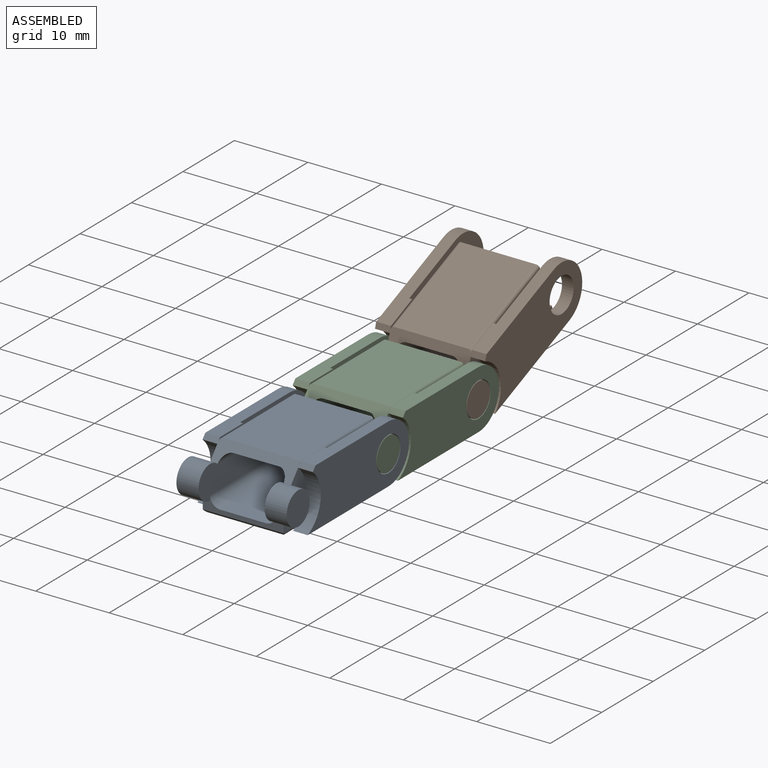
[diagram: assembled view]
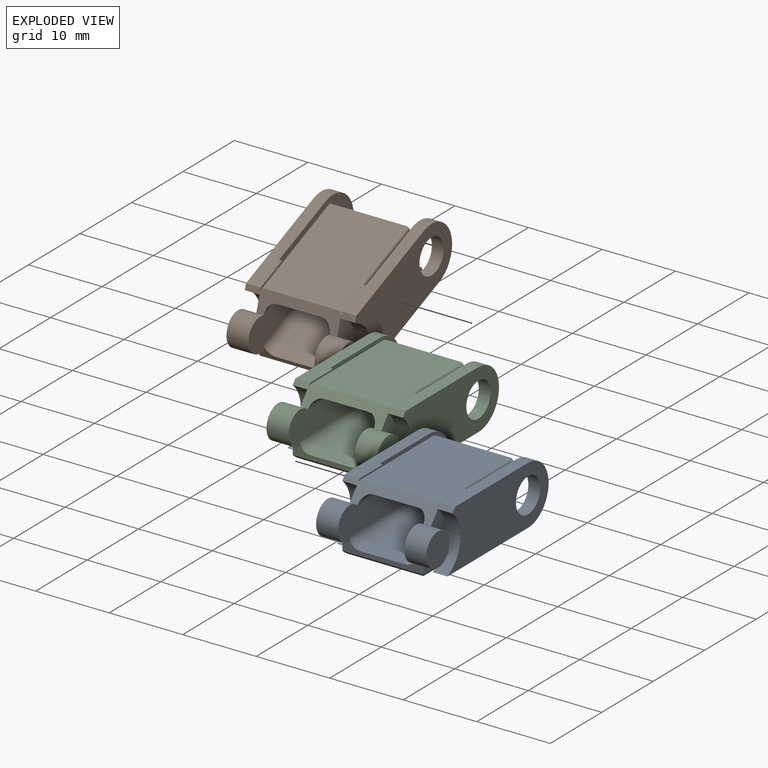
[diagram: exploded view]
GUIDED TOUR — MATED ASSEMBLY (Onshape document 5889c19751c03d0fcc5c28de, AutoMate assembly 5889c19751c03d0fcc5c28de_8cbc935df025601e3b0e09b3_b1a185b5f9ac75ec08f0bbe1_default)

This assembly has 3 components, labeled P0..P2 below (a component is one placed occurrence of a part; the same part can appear more than once), held together by 2 mates. A mate is a constraint between two components; its type names the relative motion it leaves free:
  REVOLUTE — leaves rotation about the listed axis free (a hinge).
Axis/direction vectors are unit vectors and 'through' points are millimeter coordinates, both in the assembly's world frame.

MATES
  1. REVOLUTE "Drehen 2": P0 <-> P2, axis (1.000, 0.000, 0.000) through (7.51, -6.49, -1.43) mm
  2. REVOLUTE "Drehen 1": P1 <-> P2, axis (-1.000, 0.000, 0.000) through (7.51, 11.01, -1.43) mm

ASSEMBLY ORDER
  1. P2 — the base component [order heuristic]
  2. P0 [order heuristic]
  3. P1 [order heuristic]
Order-tag legend:
  [order heuristic] — this assembly is geometrically interlocked (no collision-free removal order exists), so components are listed in mate-graph order; insertion feasibility is not verified.

Of the 3 components, 3 carry the full construction recipe — the FeatureScript program that regenerates the part's solid from scratch; the rest are supplied as boundary geometry only.
Each toured component is shown spotlighted twice — in the assembled view, then in the exploded view, where a leader line traces a displaced component back to its assembled socket (saturated green if recipe-attached, orange if geometry-only; every other component desaturated gray) — followed by its recipe or geometry summary and the mates that hold it.
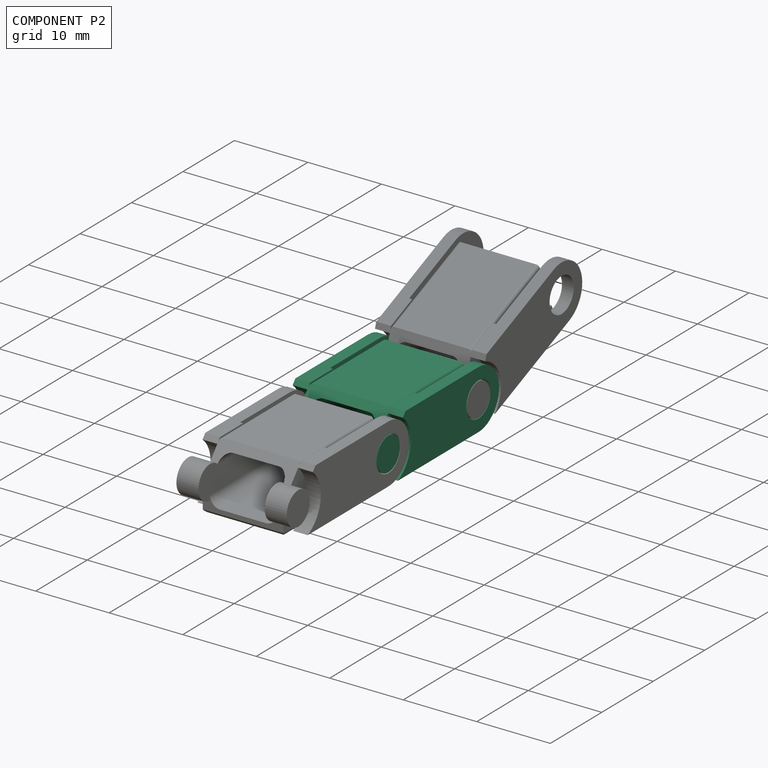
[diagram: component P2 — assembled]
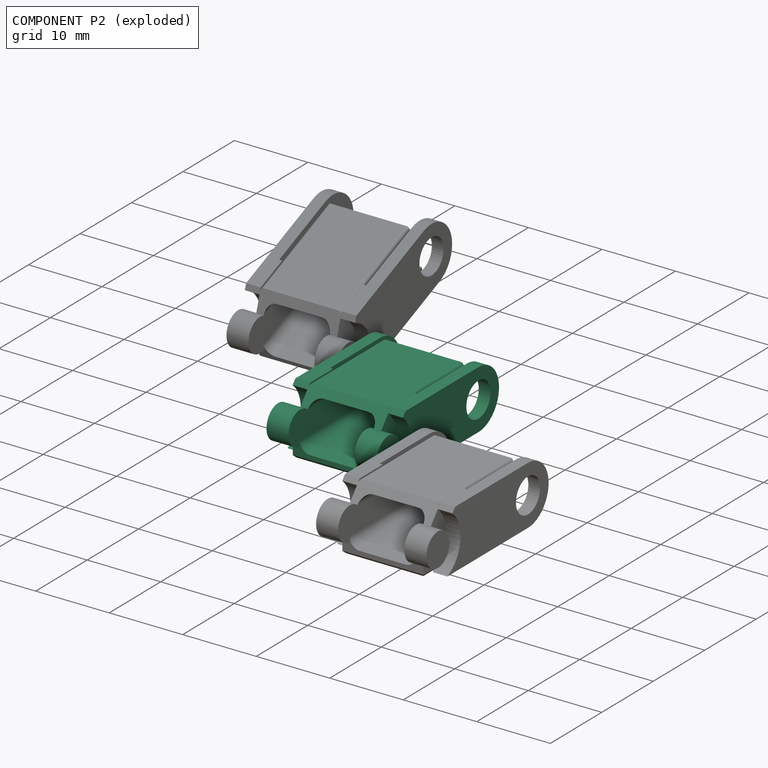
[diagram: component P2 — exploded]
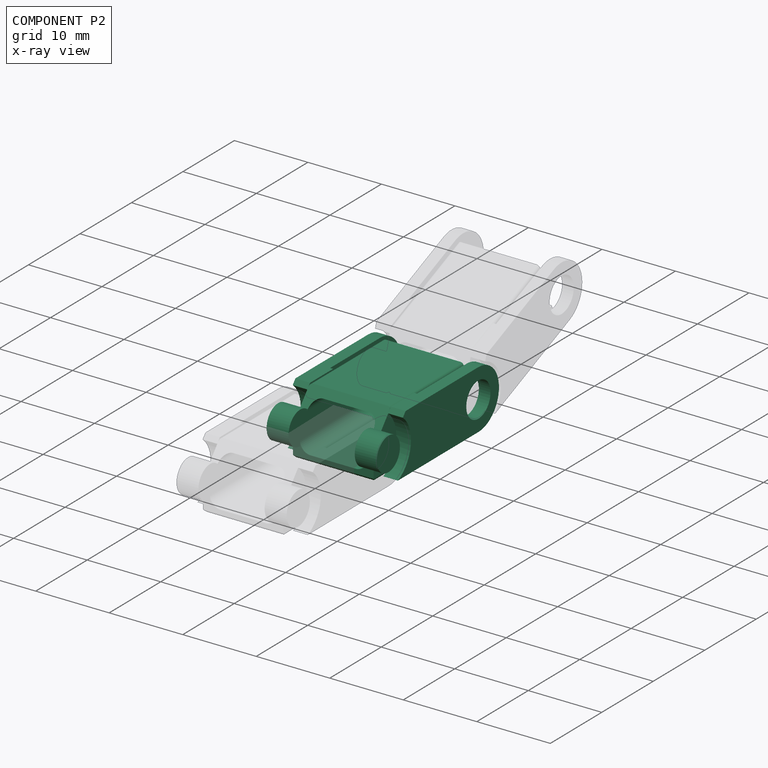
[diagram: component P2 — x-ray view]
COMPONENT P2 — same part as P0 (CADFS 00477306); its construction recipe is shown at P0.
Held by: REVOLUTE mate "Drehen 2" to P0; REVOLUTE mate "Drehen 1" to P1.
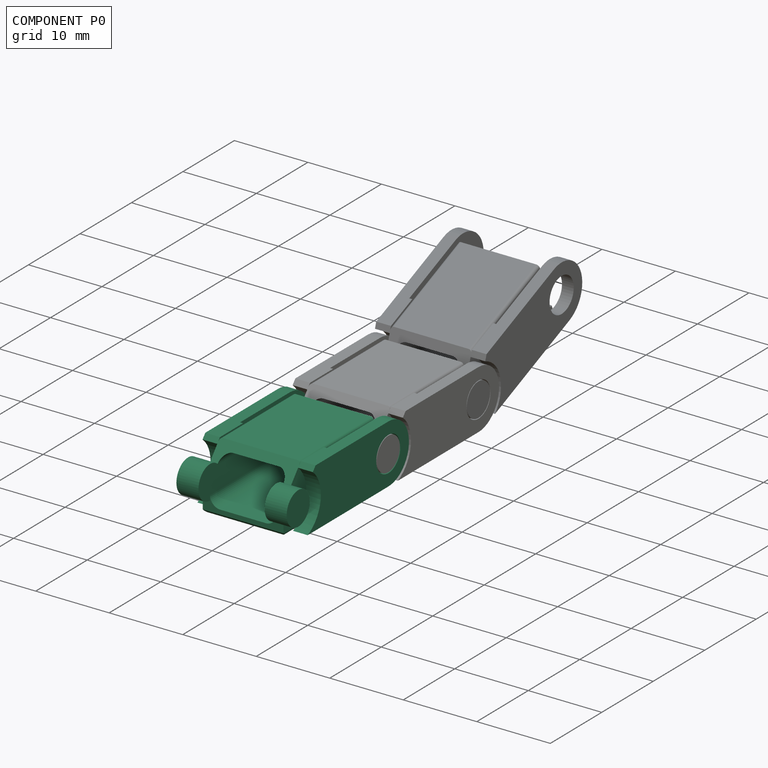
[diagram: component P0 — assembled]
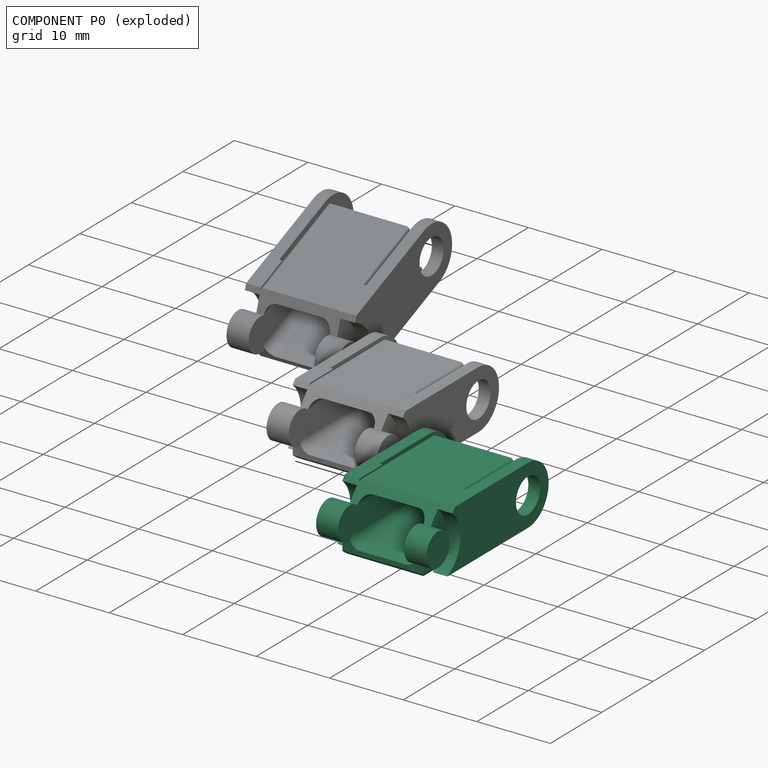
[diagram: component P0 — exploded]
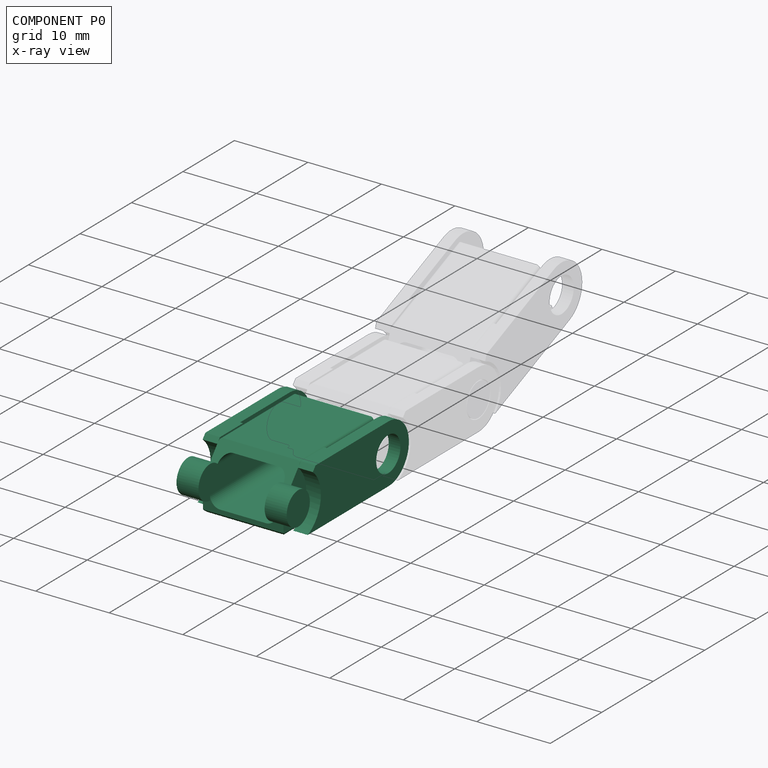
[diagram: component P0 — x-ray view]
COMPONENT P0 — recipe-attached (CADFS 00477306, mesh-verified: the recipe's output STEP matches this component's geometry to below the mesh-comparison resolution (tessellation chordal tolerance ~0.0438 mm)).
Held by: REVOLUTE mate "Drehen 2" to P2.
Construction recipe (FeatureScript — the CAD program that rebuilds this solid; sketch coordinates are in the units given by the * unit suffixes, e.g. mm):

FeatureScript 1511;
import(path : "onshape/std/geometry.fs", version : "1511.0");
import(path : "onshape/std/common.fs", version : "1511.0");
const mm = millimeter;
const VERTEX = EntityType.VERTEX;
const EDGE = EntityType.EDGE;
const FACE = EntityType.FACE;
const BODY = EntityType.BODY;
function v(x, y){return vector(x, y);}
function OD(order){return orderDisambiguation(order);}
function OSD(set){return originalSetDisambiguation(set);}
function TD(topology){return topologyDisambiguation(topology);}
function TDD(query){return trueDependencyDisambiguation(query);}
function sQuery(a, b, c) {return sketchEntityQuery(a, b, c);}

annotation { "Feature Type Name" : "Feature", "Feature Type Description" : "" }
export const myFeature = defineFeature(function(context is Context, id is Id, definition is map)
    precondition{}
    {
        {
            var Q0;
            Q0=qCreatedBy(makeId("Front.planeOp"),FACE);
            var sketch = newSketch(context, id + "F0", { "sketchPlane" : qUnion([Q0])});
            skLineSegment(sketch, "E0.bottom", {"start": v(3.1, -3) * mm, "end": v(-3.1, -3) * mm});
            skLineSegment(sketch, "E0.top", {"start": v(3.1, 3) * mm, "end": v(-3.1, 3) * mm});
            skLineSegment(sketch, "E0.left", {"start": v(4.5, -1.6) * mm, "end": v(4.5, 1.6) * mm});
            skLineSegment(sketch, "E0.right", {"start": v(-4.5, -1.6) * mm, "end": v(-4.5, 1.6) * mm});
            skPoint(sketch, "E0.middle", {"position": v(0, 0) * mm});
            skPoint(sketch, "E1.visualSharp", {"position": v(-4.5, 3) * mm});
            skArc(sketch, "E1.filletArc", {"start": v(-3.1, 3) * mm, "mid": v(-4.09, 2.59) * mm, "end": v(-4.5, 1.6) * mm});
            skPoint(sketch, "E2.visualSharp", {"position": v(4.5, 3) * mm});
            skArc(sketch, "E2.filletArc", {"start": v(4.5, 1.6) * mm, "mid": v(4.09, 2.59) * mm, "end": v(3.1, 3) * mm});
            skPoint(sketch, "E3.visualSharp", {"position": v(4.5, -3) * mm});
            skArc(sketch, "E3.filletArc", {"start": v(3.1, -3) * mm, "mid": v(4.09, -2.59) * mm, "end": v(4.5, -1.6) * mm});
            skPoint(sketch, "E4.visualSharp", {"position": v(-4.5, -3) * mm});
            skArc(sketch, "E4.filletArc", {"start": v(-4.5, -1.6) * mm, "mid": v(-4.09, -2.59) * mm, "end": v(-3.1, -3) * mm});
            skLineSegment(sketch, "E5.bottom", {"start": v(-5.1, 4) * mm, "end": v(5.1, 4) * mm});
            skLineSegment(sketch, "E5.top", {"start": v(-5.1, -4) * mm, "end": v(5.1, -4) * mm});
            skLineSegment(sketch, "E5.left", {"start": v(-5.5, 3.6) * mm, "end": v(-5.5, -3.6) * mm});
            skLineSegment(sketch, "E5.right", {"start": v(5.5, 3.6) * mm, "end": v(5.5, -3.6) * mm});
            skPoint(sketch, "E6.visualSharp", {"position": v(-5.5, 4) * mm});
            skArc(sketch, "E6.filletArc", {"start": v(-5.1, 4) * mm, "mid": v(-5.38, 3.88) * mm, "end": v(-5.5, 3.6) * mm});
            skPoint(sketch, "E7.visualSharp", {"position": v(5.5, 4) * mm});
            skArc(sketch, "E7.filletArc", {"start": v(5.5, 3.6) * mm, "mid": v(5.38, 3.88) * mm, "end": v(5.1, 4) * mm});
            skPoint(sketch, "E8.visualSharp", {"position": v(5.5, -4) * mm});
            skArc(sketch, "E8.filletArc", {"start": v(5.1, -4) * mm, "mid": v(5.38, -3.88) * mm, "end": v(5.5, -3.6) * mm});
            skPoint(sketch, "E9.visualSharp", {"position": v(-5.5, -4) * mm});
            skArc(sketch, "E9.filletArc", {"start": v(-5.5, -3.6) * mm, "mid": v(-5.38, -3.88) * mm, "end": v(-5.1, -4) * mm});
            skSolve(sketch);
        }
        {
            var Q0;
            Q0=qSketchRegion(id+"F0",true);
            extrude(context, id + "F1", {"entities" : qUnion([Q0]), "depth" : 17.5 * mm});
        }
        {
            var Q0;
            Q0=makeQuery(id+"F1.opExtrude","SWEPT_FACE",FACE,{"disambiguationData":[OSD([sQuery(id+"F0.wireOp",EDGE,"E5.right")])]});
            var sketch = newSketch(context, id + "F2", { "sketchPlane" : qUnion([Q0])});
            skLineSegment(sketch, "E10", {"start": v(-17.5, 0) * mm, "end": v(-14.14, 4) * mm});
            skLineSegment(sketch, "E11", {"start": v(-17.5, 0) * mm, "end": v(-17.5, 4) * mm});
            skLineSegment(sketch, "E12", {"start": v(-17.5, 4) * mm, "end": v(-14.14, 4) * mm});
            skSolve(sketch);
        }
        {
            var Q0;
            {var subQ0=sQuery(id+"F2.wireOp",EDGE,"E11");var subQ1=sQuery(id+"F2.wireOp",EDGE,"E10");var subQ2=sQuery(id+"F0.wireOp",EDGE,"E5.right");var subQ3=makeQuery(id+"F2.imprint","INTERSECT",VERTEX,{"derivedFrom":[makeQuery(id+"F1.opExtrude","CAP_EDGE",EDGE,{"disambiguationData":[OSD([subQ2])],"isStart":false}),subQ1,subQ0]});Q0=makeQuery(id+"F2.imprint","IMPRINT",FACE,{"disambiguationData":[TD([[makeQuery(id+"F2.imprint","IMPRINT",EDGE,{"disambiguationData":[TD([[subQ3,-1.0]])],"derivedFrom":subQ1}),1.0]])]});}
            var Q1;
            {var subQ0=sQuery(id+"F2.wireOp",EDGE,"E12");Q1=makeQuery(id+"F2.imprint","IMPRINT",FACE,{"disambiguationData":[TD([[makeQuery(id+"F2.imprint","IMPRINT",EDGE,{"derivedFrom":subQ0}),-1.0]])]});}
            var Q2;
            Q2=sQuery(id+"F2.wireOp",EDGE,"d9586431-e679-4d5a-a5e5-9d37ee124d94.0");
            var Q3;
            Q3=makeQuery(id+"F1.opExtrude","SWEPT_FACE",FACE,{"disambiguationData":[OSD([sQuery(id+"F0.wireOp",EDGE,"E5.left")])]});
            extrude(context, id + "F3", {"entities" : qUnion([Q0, Q1]), "operationType" : NewBodyOperationType.REMOVE, "surfaceEntities" : qUnion([Q2]), "endBound" : BoundingType.UP_TO_SURFACE, "oppositeDirection" : true, "endBoundEntityFace" : qUnion([Q3]), "depth" : 12 * mm});
        }
        {
            var Q0;
            Q0=makeQuery(id+"F1.opExtrude","SWEPT_FACE",FACE,{"disambiguationData":[OSD([sQuery(id+"F0.wireOp",EDGE,"E5.right")])]});
            var sketch = newSketch(context, id + "F4", { "sketchPlane" : qUnion([Q0])});
            skCircle(sketch, "E13", {"center": v(-17.5, 0) * mm, "radius": 2.25 * mm});
            skSolve(sketch);
        }
        {
            var Q0;
            Q0=qSketchRegion(id+"F4",true);
            extrude(context, id + "F5", {"entities" : qUnion([Q0]), "operationType" : NewBodyOperationType.ADD, "depth" : 2 * mm, "hasSecondDirection" : true, "secondDirectionOppositeDirection" : true, "secondDirectionDepth" : 1 * mm});
        }
        {
            var Q0;
            Q0=makeQuery(id+"F1.opExtrude","SWEPT_FACE",FACE,{"disambiguationData":[OSD([sQuery(id+"F0.wireOp",EDGE,"E5.left")])]});
            var sketch = newSketch(context, id + "F6", { "sketchPlane" : qUnion([Q0])});
            skArc(sketch, "E14.0", {"start": v(16.05, 1.72) * mm, "mid": v(19.61, 0.77) * mm, "end": v(17.5, -2.25) * mm, "construction": true});
            skCircle(sketch, "E15", {"center": v(17.5, 0) * mm, "radius": 2.25 * mm});
            skSolve(sketch);
        }
        {
            var Q0;
            {var subQ0=sQuery(id+"F6.wireOp",EDGE,"E15");var subQ1=sQuery(id+"F0.wireOp",EDGE,"E5.left");var subQ2=makeQuery(id+"F1.opExtrude","CAP_EDGE",EDGE,{"disambiguationData":[OSD([subQ1])],"isStart":false});var subQ3=makeQuery(id+"F6.imprint","INTERSECT",VERTEX,{"derivedFrom":[subQ2,subQ0]});Q0=makeQuery(id+"F6.imprint","IMPRINT",FACE,{"disambiguationData":[TD([[makeQuery(id+"F6.imprint","IMPRINT",EDGE,{"disambiguationData":[TD([[subQ3,-1.0]])],"derivedFrom":subQ0}),1.0]])]});}
            var Q1;
            {var subQ0=sQuery(id+"F6.wireOp",EDGE,"E15");var subQ1=sQuery(id+"F0.wireOp",EDGE,"E5.left");var subQ2=makeQuery(id+"F1.opExtrude","CAP_EDGE",EDGE,{"disambiguationData":[OSD([subQ1])],"isStart":false});var subQ3=makeQuery(id+"F6.imprint","INTERSECT",VERTEX,{"derivedFrom":[subQ2,subQ0]});Q1=makeQuery(id+"F6.imprint","IMPRINT",FACE,{"disambiguationData":[TD([[makeQuery(id+"F6.imprint","IMPRINT",EDGE,{"disambiguationData":[TD([[subQ3,1.0]])],"derivedFrom":subQ0}),1.0]])]});}
            extrude(context, id + "F7", {"entities" : qUnion([Q0, Q1]), "operationType" : NewBodyOperationType.ADD, "depth" : 2 * mm, "hasSecondDirection" : true, "secondDirectionOppositeDirection" : true, "secondDirectionDepth" : 1 * mm});
        }
        {
            var Q0;
            Q0=makeQuery(id+"F1.opExtrude","SWEPT_FACE",FACE,{"disambiguationData":[OSD([sQuery(id+"F0.wireOp",EDGE,"E5.right")])]});
            cPlane(context, id + "F8", {"entities" : qUnion([Q0]), "cplaneType" : CPlaneType.OFFSET, "offset" : 0.4 * mm, "width" : 150 * mm, "height" : 150 * mm});
        }
        {
            var Q0;
            Q0=qCreatedBy(id+"F8.planeOp",FACE);
            var sketch = newSketch(context, id + "F9", { "sketchPlane" : qUnion([Q0])});
            skCircle(sketch, "E16", {"center": v(0, 0) * mm, "radius": 2.35 * mm});
            skArc(sketch, "E17", {"start": v(0, 4) * mm, "mid": v(4, 0) * mm, "end": v(0, -4) * mm});
            skCircle(sketch, "E18.0", {"center": v(-17.5, 0) * mm, "radius": 2.25 * mm, "construction": true});
            skArc(sketch, "E19", {"start": v(-15.67, 4) * mm, "mid": v(-13.1, 0) * mm, "end": v(-15.67, -4) * mm});
            skLineSegment(sketch, "E20", {"start": v(0, 4) * mm, "end": v(-15.67, 4) * mm});
            skLineSegment(sketch, "E21", {"start": v(0, -4) * mm, "end": v(-15.67, -4) * mm});
            skSolve(sketch);
        }
        {
            var Q0;
            Q0=qSketchRegion(id+"F9",true);
            extrude(context, id + "F10", {"entities" : qUnion([Q0]), "depth" : 1.6 * mm});
        }
        {
            var Q0;
            Q0=makeQuery(id+"F10.opExtrude","CAP_FACE",FACE,{"disambiguationData":[OSD([sQuery(id+"F9.wireOp",EDGE,"E16"),sQuery(id+"F9.wireOp",EDGE,"E17"),sQuery(id+"F9.wireOp",EDGE,"E19"),sQuery(id+"F9.wireOp",EDGE,"E20"),sQuery(id+"F9.wireOp",EDGE,"E21")])],"isStart":true});
            var sketch = newSketch(context, id + "F11", { "sketchPlane" : qUnion([Q0])});
            skArc(sketch, "E22.0", {"start": v(15.67, 4) * mm, "mid": v(13.1, 0) * mm, "end": v(15.67, -4) * mm});
            skLineSegment(sketch, "E23", {"start": v(15.67, -4) * mm, "end": v(9.67, -4) * mm});
            skLineSegment(sketch, "E24", {"start": v(9.67, -4) * mm, "end": v(9.67, 4) * mm});
            skLineSegment(sketch, "E25", {"start": v(9.67, 4) * mm, "end": v(15.67, 4) * mm});
            skSolve(sketch);
        }
        {
            var Q0;
            Q0=qSketchRegion(id+"F11",true);
            extrude(context, id + "F12", {"entities" : qUnion([Q0]), "operationType" : NewBodyOperationType.ADD, "depth" : 0.4 * mm});
        }
        {
            var Q0;
            Q0=makeQuery(id+"F1.opExtrude","SWEPT_FACE",FACE,{"disambiguationData":[OSD([sQuery(id+"F0.wireOp",EDGE,"E5.left")])]});
            cPlane(context, id + "F13", {"entities" : qUnion([Q0]), "cplaneType" : CPlaneType.OFFSET, "offset" : 0.4 * mm, "width" : 150 * mm, "height" : 150 * mm});
        }
        {
            var Q0;
            Q0=qCreatedBy(id+"F13.planeOp",FACE);
            var sketch = newSketch(context, id + "F14", { "sketchPlane" : qUnion([Q0])});
            skArc(sketch, "E26.0", {"start": v(0, 4) * mm, "mid": v(-4, 0) * mm, "end": v(0, -4) * mm});
            skLineSegment(sketch, "E27.0", {"start": v(0, -4) * mm, "end": v(15.67, -4) * mm});
            skLineSegment(sketch, "E28.0", {"start": v(0, 4) * mm, "end": v(15.67, 4) * mm});
            skArc(sketch, "E29.0", {"start": v(15.67, 4) * mm, "mid": v(13.1, 0) * mm, "end": v(15.67, -4) * mm});
            skCircle(sketch, "E30.0", {"center": v(0, 0) * mm, "radius": 2.35 * mm});
            skSolve(sketch);
        }
        {
            var Q0;
            Q0=qSketchRegion(id+"F14",true);
            extrude(context, id + "F15", {"entities" : qUnion([Q0]), "depth" : 1.6 * mm});
        }
        {
            var Q0;
            Q0=makeQuery(id+"F15.opExtrude","CAP_FACE",FACE,{"disambiguationData":[OSD([sQuery(id+"F14.wireOp",EDGE,"E26.0"),sQuery(id+"F14.wireOp",EDGE,"E27.0"),sQuery(id+"F14.wireOp",EDGE,"E28.0"),sQuery(id+"F14.wireOp",EDGE,"E29.0"),sQuery(id+"F14.wireOp",EDGE,"E30.0")])],"isStart":true});
            var sketch = newSketch(context, id + "F16", { "sketchPlane" : qUnion([Q0])});
            skArc(sketch, "E31.0", {"start": v(-15.67, 4) * mm, "mid": v(-13.1, 0) * mm, "end": v(-15.67, -4) * mm});
            skLineSegment(sketch, "E32", {"start": v(-15.67, -4) * mm, "end": v(-9.67, -4) * mm});
            skLineSegment(sketch, "E33", {"start": v(-9.67, -4) * mm, "end": v(-9.67, 4) * mm});
            skLineSegment(sketch, "E34", {"start": v(-9.67, 4) * mm, "end": v(-15.67, 4) * mm});
            skSolve(sketch);
        }
        {
            var Q0;
            Q0=qSketchRegion(id+"F16",true);
            extrude(context, id + "F17", {"entities" : qUnion([Q0]), "operationType" : NewBodyOperationType.ADD, "depth" : 0.4 * mm});
        }
        {
            var Q0;
            {var subQ0=sQuery(id+"F16.wireOp",EDGE,"E33");var subQ3=sQuery(id+"F0.wireOp",EDGE,"E5.left");Q0=makeQuery(id+"F17.boolean.opBoolean","SPLIT",FACE,{"disambiguationData":[TD([makeQuery(id+"F17.opExtrude","SWEPT_FACE",FACE,{"disambiguationData":[OSD([subQ0])]})])],"derivedFrom":makeQuery(id+"F1.opExtrude","SWEPT_FACE",FACE,{"disambiguationData":[OSD([subQ3])]})});}
            var sketch = newSketch(context, id + "F18", { "sketchPlane" : qUnion([Q0])});
            skCircle(sketch, "E35.0", {"center": v(0, 0) * mm, "radius": 2.35 * mm});
            skSolve(sketch);
        }
        {
            var Q0;
            Q0=qSketchRegion(id+"F18",true);
            extrude(context, id + "F19", {"entities" : qUnion([Q0]), "operationType" : NewBodyOperationType.REMOVE, "endBound" : BoundingType.THROUGH_ALL, "oppositeDirection" : true, "depth" : 25 * mm});
        }
        {
            var Q0;
            Q0=makeQuery(id+"F10.opExtrude","CAP_FACE",FACE,{"disambiguationData":[OSD([sQuery(id+"F9.wireOp",EDGE,"E16"),sQuery(id+"F9.wireOp",EDGE,"E17"),sQuery(id+"F9.wireOp",EDGE,"E19"),sQuery(id+"F9.wireOp",EDGE,"E20"),sQuery(id+"F9.wireOp",EDGE,"E21")])],"isStart":false});
            var sketch = newSketch(context, id + "F20", { "sketchPlane" : qUnion([Q0])});
            skPoint(sketch, "E36.0", {"position": v(-15.67, 4) * mm});
            skLineSegment(sketch, "E37.0", {"start": v(-16.05, 1.72) * mm, "end": v(-14.67, 3.37) * mm, "construction": true});
            skArc(sketch, "E38.0", {"start": v(-15.67, 4) * mm, "mid": v(-13.1, 0) * mm, "end": v(-15.67, -4) * mm, "construction": true});
            skLineSegment(sketch, "E39", {"start": v(-14.67, 3.37) * mm, "end": v(-14.14, 4) * mm});
            skLineSegment(sketch, "E40", {"start": v(-15.67, 4) * mm, "end": v(-14.14, 4) * mm});
            skArc(sketch, "E41", {"start": v(-15.67, 4) * mm, "mid": v(-15.15, 3.72) * mm, "end": v(-14.67, 3.37) * mm});
            skSolve(sketch);
        }
        {
            var Q0;
            Q0=qSketchRegion(id+"F20",true);
            var Q1;
            Q1=makeQuery(id+"F15.opExtrude","CAP_FACE",FACE,{"disambiguationData":[OSD([sQuery(id+"F14.wireOp",EDGE,"E26.0"),sQuery(id+"F14.wireOp",EDGE,"E27.0"),sQuery(id+"F14.wireOp",EDGE,"E28.0"),sQuery(id+"F14.wireOp",EDGE,"E29.0"),sQuery(id+"F14.wireOp",EDGE,"E30.0")])],"isStart":false});
            extrude(context, id + "F21", {"entities" : qUnion([Q0]), "operationType" : NewBodyOperationType.REMOVE, "endBound" : BoundingType.UP_TO_SURFACE, "oppositeDirection" : true, "endBoundEntityFace" : qUnion([Q1]), "depth" : 25 * mm});
        }
        {
            var Q0;
            Q0=makeQuery(id+"F1.opExtrude","CAP_EDGE",EDGE,{"disambiguationData":[OSD([sQuery(id+"F0.wireOp",EDGE,"E5.top")])],"isStart":false});
            var Q1;
            Q1=makeQuery(id+"F10.opExtrude","CAP_EDGE",EDGE,{"disambiguationData":[OSD([sQuery(id+"F9.wireOp",EDGE,"E21")])],"isStart":true});
            var Q2;
            Q2=makeQuery(id+"F15.opExtrude","CAP_EDGE",EDGE,{"disambiguationData":[OSD([sQuery(id+"F14.wireOp",EDGE,"E27.0")])],"isStart":true});
            var Q3;
            Q3=makeQuery(id+"F1.opExtrude","CAP_EDGE",EDGE,{"disambiguationData":[OSD([sQuery(id+"F0.wireOp",EDGE,"E5.top")])],"isStart":true});
            chamfer(context, id + "F22", {"entities" : qUnion([Q0, Q1, Q2, Q3]), "width" : 0.4 * mm});
        }
    });
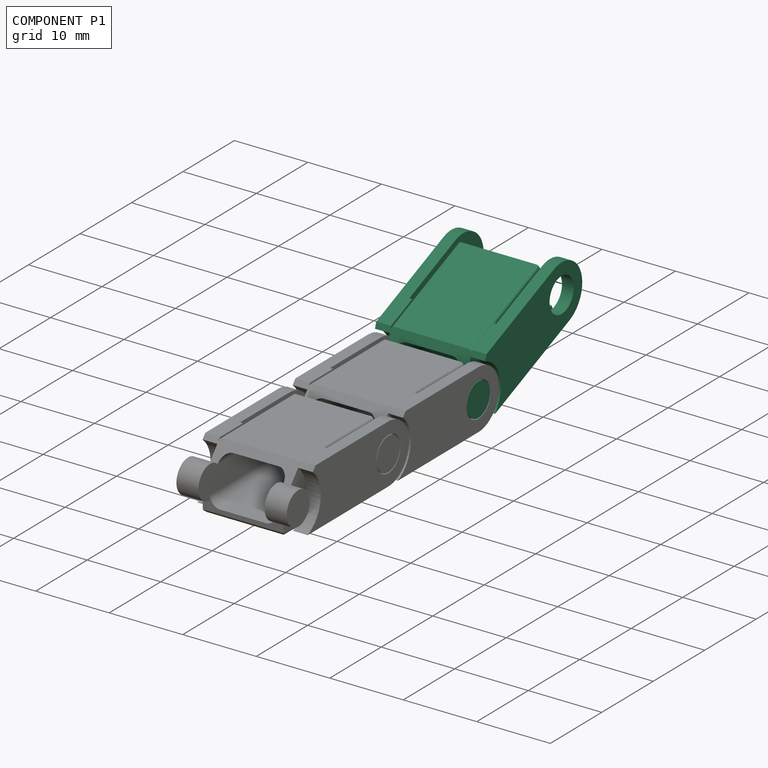
[diagram: component P1 — assembled]
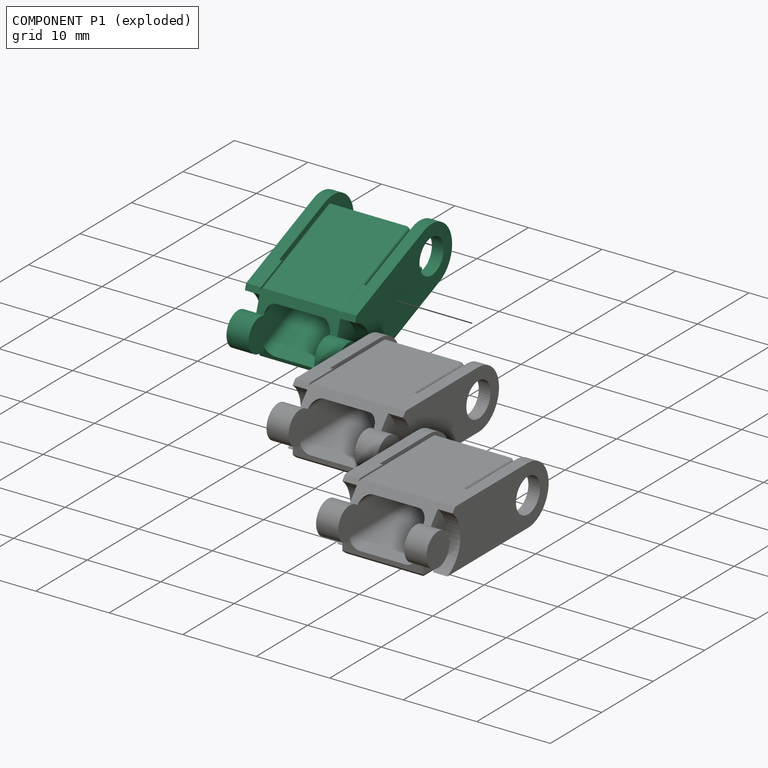
[diagram: component P1 — exploded]
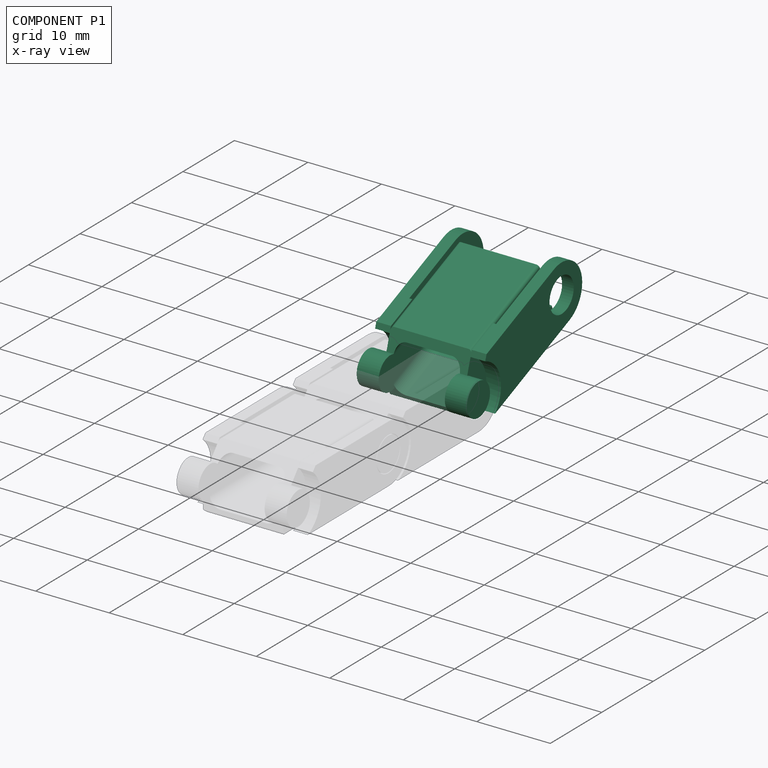
[diagram: component P1 — x-ray view]
COMPONENT P1 — same part as P0 (CADFS 00477306); its construction recipe is shown at P0.
Held by: REVOLUTE mate "Drehen 1" to P2.
PROVENANCE & LICENSES
Assembly (occurrences, transforms, mates, per-part STEP geometry): AutoMate dataset, Zenodo record 7776208, CC0.
Construction recipes: CADFS (HuggingFace VladPyatov/CADFS, CC-BY-4.0, layered over the ABC dataset), FeatureScript reconstruction programs keyed by ABC model id.
Join: ABC meta listings map ABC model id -> Onshape documentId; within a shared document, parts are matched by geometric signature (bounding-box dims + volume at 0.1% relative tolerance, exact B-rep face/solid counts).
Verification: 3 of this assembly's 3 components carry a recipe attachment, and every attachment is mesh-verified: the CADFS STEP and the AutoMate member STEP were compared as meshes in their shared local frame (symmetric sampled-point-to-mesh distance); worst across the 3 attachments: below the mesh-comparison resolution (tessellation chordal tolerance ~0.0438 mm) on a 29 mm part.
Renders: orthographic iso camera (az 35 / el 25); the floor grid conveys scale (grid pitch printed in each image; no ruler). In the exploded view each component is displaced by its stored offset vector: the offsets alone carry the explosion direction (mate normal/axis signs are not orientation cues and do not encode it), and separation distances are assigned per mate-chain, not proportionally to assembly-order depth.
